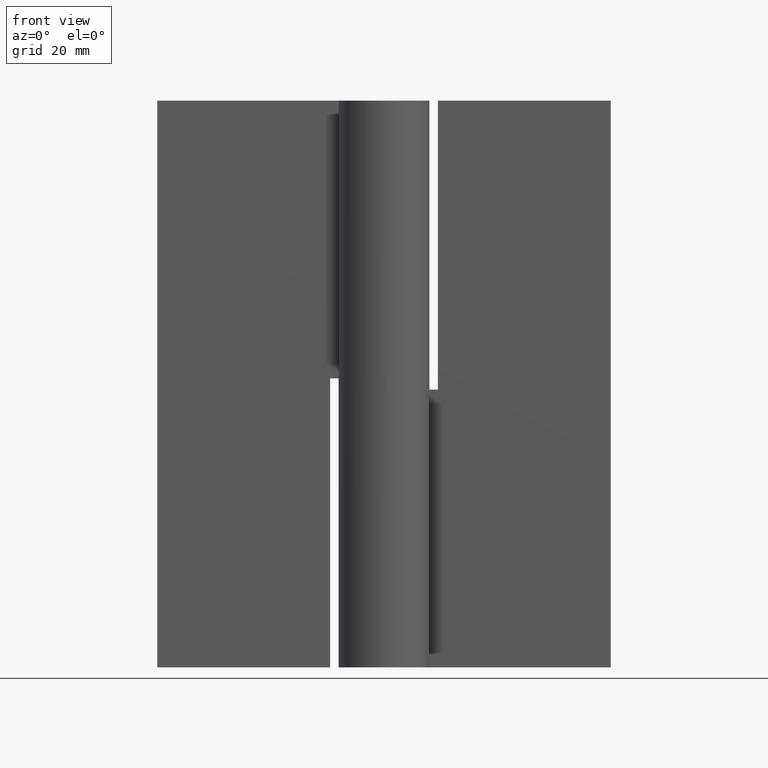
[diagram: clean part render]
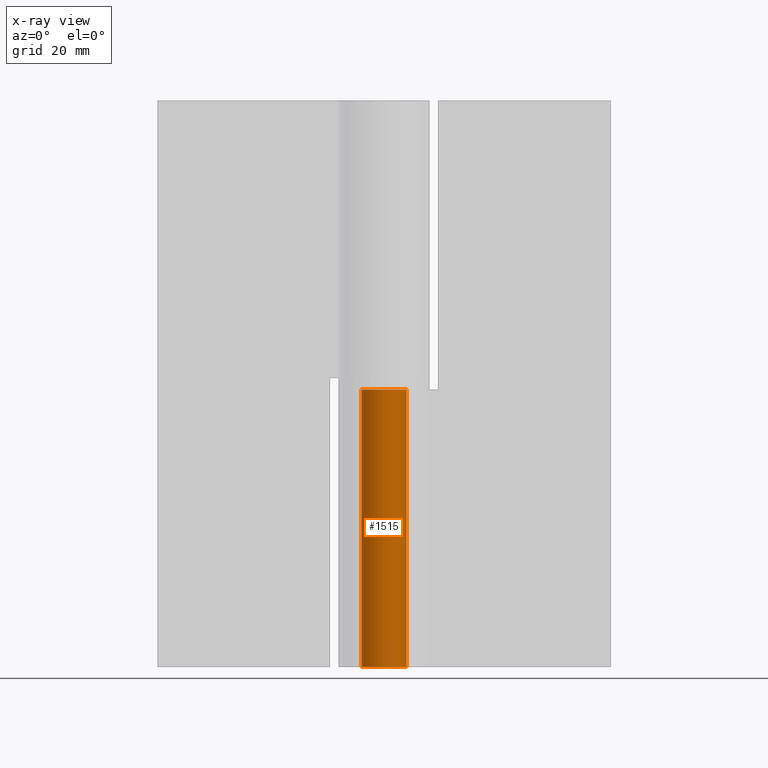
[diagram: x-ray — body ghosted, one internal face saturated and labeled with its STEP entity id]
A machine part, front view, then the same camera in x-ray: the body is ghosted and one INTERNAL B-rep face — a face not visible from any outside direction — is saturated and labeled: STEP entity #1515.
In plain terms, the highlighted face is a freeform B-spline surface patch.
Its self-contained STEP definition (entity closure, byte-faithful):
#1211=CARTESIAN_POINT('',(0.0,4.0,49.0));
#1212=VERTEX_POINT('',#1211);
#1247=CARTESIAN_POINT('',(3.478415587591571,1.975000000000000,49.0));
#1248=VERTEX_POINT('',#1247);
#1254=CARTESIAN_POINT('',(3.478415587591570,1.974999999999999,49.0));
#1255=CARTESIAN_POINT('',(4.991063490863774,-0.689110402673285,49.000000000000014));
#1256=CARTESIAN_POINT('',(2.813108257766271,-2.843663469907650,49.0));
#1257=CARTESIAN_POINT('',(0.635153024668770,-4.998216537142016,49.000000000000014));
#1258=CARTESIAN_POINT('',(-2.012461179749808,-3.456877203488723,49.0));
#1259=CARTESIAN_POINT('',(-4.660075384168388,-1.915537869835430,49.000000000000014));
#1260=CARTESIAN_POINT('',(-3.861833037169971,1.042231065082285,49.0));
#1261=CARTESIAN_POINT('',(-3.063590690171553,4.000000000000001,49.000000000000014));
#1262=CARTESIAN_POINT('',(0.0,4.0,49.0));
#1270=(BOUNDED_CURVE()B_SPLINE_CURVE(2,(#1254,#1255,#1256,#1257,#1258,#1259,#1260,#1261,#1262),.UNSPECIFIED.,.F.,.U.)B_SPLINE_CURVE_WITH_KNOTS((3,2,2,2,3),(0.0,0.250000000000000,0.500000000000000,0.750000000000000,1.0),.UNSPECIFIED.)CURVE()GEOMETRIC_REPRESENTATION_ITEM()RATIONAL_B_SPLINE_CURVE((1.0,0.793901053743655,1.0,0.793901053743655,1.0,0.793901053743655,1.0,0.793901053743655,1.0))REPRESENTATION_ITEM(''));
#1271=EDGE_CURVE('',#1248,#1212,#1270,.T.);
#1309=CARTESIAN_POINT('',(3.478415587591571,1.975000000000000,0.0));
#1310=VERTEX_POINT('',#1309);
#1311=CARTESIAN_POINT('',(0.0,4.0,0.0));
#1312=VERTEX_POINT('',#1311);
#1313=CARTESIAN_POINT('',(3.478415587591569,1.975000000000001,0.0));
#1314=CARTESIAN_POINT('',(4.991063490863774,-0.689110402673284,0.0));
#1315=CARTESIAN_POINT('',(2.813108257766271,-2.843663469907650,0.0));
#1316=CARTESIAN_POINT('',(0.635153024668771,-4.998216537142015,0.0));
#1317=CARTESIAN_POINT('',(-2.012461179749808,-3.456877203488723,0.0));
#1318=CARTESIAN_POINT('',(-4.660075384168389,-1.915537869835431,0.0));
#1319=CARTESIAN_POINT('',(-3.861833037169971,1.042231065082284,0.0));
#1320=CARTESIAN_POINT('',(-3.063590690171554,4.0,0.0));
#1321=CARTESIAN_POINT('',(0.0,4.0,0.0));
#1329=(BOUNDED_CURVE()B_SPLINE_CURVE(2,(#1313,#1314,#1315,#1316,#1317,#1318,#1319,#1320,#1321),.UNSPECIFIED.,.F.,.U.)B_SPLINE_CURVE_WITH_KNOTS((3,2,2,2,3),(0.0,0.250000000000000,0.500000000000000,0.750000000000000,1.0),.UNSPECIFIED.)CURVE()GEOMETRIC_REPRESENTATION_ITEM()RATIONAL_B_SPLINE_CURVE((1.0,0.793901053743655,1.0,0.793901053743655,1.0,0.793901053743655,1.0,0.793901053743655,1.0))REPRESENTATION_ITEM(''));
#1330=EDGE_CURVE('',#1310,#1312,#1329,.T.);
#1394=CARTESIAN_POINT('',(3.478415587591571,1.975000000000000,0.0));
#1395=CARTESIAN_POINT('',(3.478415587591571,1.975000000000000,49.0));
#1396=QUASI_UNIFORM_CURVE('',1,(#1394,#1395),.UNSPECIFIED.,.F.,.U.);
#1397=EDGE_CURVE('',#1310,#1248,#1396,.T.);
#1476=CARTESIAN_POINT('',(0.0,4.0,0.0));
#1477=CARTESIAN_POINT('',(0.0,4.0,49.0));
#1478=QUASI_UNIFORM_CURVE('',1,(#1476,#1477),.UNSPECIFIED.,.F.,.U.);
#1479=EDGE_CURVE('',#1312,#1212,#1478,.T.);
#1487=CARTESIAN_POINT('',(3.425524148537016,2.065377521856414,-1.225000000000001));
#1488=CARTESIAN_POINT('',(3.425524148537016,2.065377521856414,50.255625000000009));
#1489=CARTESIAN_POINT('',(5.945929309527354,-2.114831012276139,-1.225000000000001));
#1490=CARTESIAN_POINT('',(5.945929309527354,-2.114831012276139,50.255625000000009));
#1491=CARTESIAN_POINT('',(1.351931292560142,-3.764609113865164,-1.225000000000001));
#1492=CARTESIAN_POINT('',(1.351931292560142,-3.764609113865164,50.255625000000009));
#1493=CARTESIAN_POINT('',(-3.242066724407070,-5.414387215454188,-1.225000000000001));
#1494=CARTESIAN_POINT('',(-3.242066724407070,-5.414387215454188,50.255625000000009));
#1495=CARTESIAN_POINT('',(-3.956878056407527,-0.585761083310067,-1.225000000000001));
#1496=CARTESIAN_POINT('',(-3.956878056407527,-0.585761083310067,50.255625000000009));
#1497=CARTESIAN_POINT('',(-4.671689388407983,4.242865048834054,-1.225000000000001));
#1498=CARTESIAN_POINT('',(-4.671689388407983,4.242865048834054,50.255625000000009));
#1499=CARTESIAN_POINT('',(0.203253227399980,3.994832678041908,-1.225000000000001));
#1500=CARTESIAN_POINT('',(0.203253227399980,3.994832678041908,50.255625000000009));
#1508=(BOUNDED_SURFACE()B_SPLINE_SURFACE(1,2,((#1487,#1489,#1491,#1493,#1495,#1497,#1499),(#1488,#1490,#1492,#1494,#1496,#1498,#1500)),.UNSPECIFIED.,.F.,.F.,.U.)B_SPLINE_SURFACE_WITH_KNOTS((2,2),(3,2,2,3),(0.0,51.480625000000018),(0.0,7.574556811985904,15.149113623971809,22.723670435957711),.UNSPECIFIED.)GEOMETRIC_REPRESENTATION_ITEM()RATIONAL_B_SPLINE_SURFACE(((1.0,0.633830967398710,1.0,0.633830967398710,1.0,0.633830967398710,1.0),(1.0,0.633830967398710,1.0,0.633830967398710,1.0,0.633830967398710,1.0)))REPRESENTATION_ITEM('')SURFACE());
#1509=ORIENTED_EDGE('',*,*,#1271,.F.);
#1510=ORIENTED_EDGE('',*,*,#1397,.F.);
#1511=ORIENTED_EDGE('',*,*,#1330,.T.);
#1512=ORIENTED_EDGE('',*,*,#1479,.T.);
#1513=EDGE_LOOP('',(#1509,#1510,#1511,#1512));
#1514=FACE_OUTER_BOUND('',#1513,.T.);
#1515=ADVANCED_FACE('',(#1514),#1508,.F.);